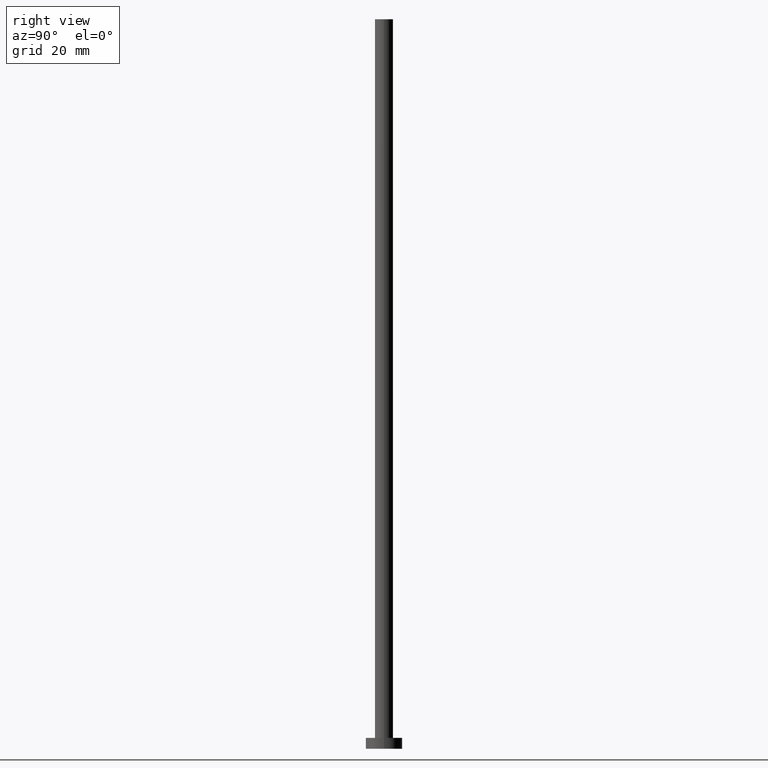
[diagram: clean part render]
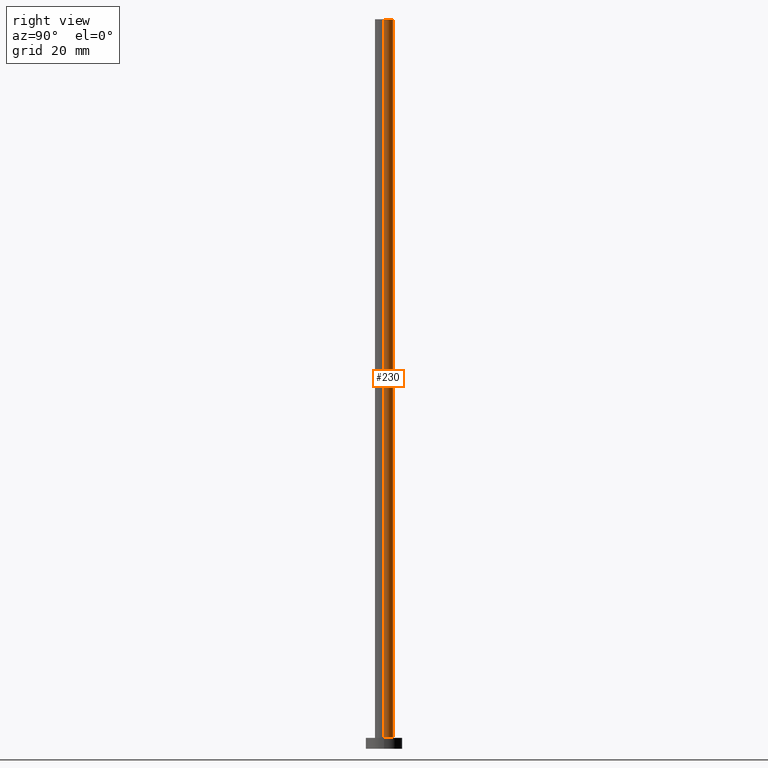
[diagram: same view with one face highlighted and labeled with its STEP entity id]
A machine part, right view. The second image highlights one B-rep face of the part: STEP entity #230.
In plain terms, the highlighted cylindrical surface (edge-blend (fillet) strip) has radius 2.5 mm, axis along (-0, -0, -1).
Its self-contained STEP definition (entity closure, byte-faithful):
#3 = VERTEX_POINT ( 'NONE', #71 ) ;
#10 = AXIS2_PLACEMENT_3D ( 'NONE', #13, #156, #245 ) ;
#13 = CARTESIAN_POINT ( 'NONE',  ( 0.000000000000000000, 0.000000000000000000, 200.0000000000000000 ) ) ;
#27 = CARTESIAN_POINT ( 'NONE',  ( -2.500000000000000000, 0.000000000000000000, 200.0000000000000000 ) ) ;
#30 = EDGE_CURVE ( 'NONE', #235, #131, #73, .T. ) ;
#32 = CARTESIAN_POINT ( 'NONE',  ( 2.500000000000000000, 3.061616997868383141E-16, 200.0000000000000000 ) ) ;
#37 = VECTOR ( 'NONE', #115, 1000.000000000000000 ) ;
#38 = ORIENTED_EDGE ( 'NONE', *, *, #248, .F. ) ;
#39 = EDGE_CURVE ( 'NONE', #3, #131, #223, .T. ) ;
#49 = CYLINDRICAL_SURFACE ( 'NONE', #10, 2.500000000000000000 ) ;
#51 = DIRECTION ( 'NONE',  ( 0.000000000000000000, 0.000000000000000000, 1.000000000000000000 ) ) ;
#62 = CARTESIAN_POINT ( 'NONE',  ( -2.500000000000000000, 0.000000000000000000, 3.000000000000000000 ) ) ;
#65 = CARTESIAN_POINT ( 'NONE',  ( 2.500000000000000000, 3.061616997868383141E-16, 200.0000000000000000 ) ) ;
#71 = CARTESIAN_POINT ( 'NONE',  ( 2.500000000000000000, 3.061616997868383141E-16, 3.000000000000000000 ) ) ;
#72 = DIRECTION ( 'NONE',  ( 0.000000000000000000, 0.000000000000000000, 1.000000000000000000 ) ) ;
#73 = LINE ( 'NONE', #229, #77 ) ;
#77 = VECTOR ( 'NONE', #188, 1000.000000000000000 ) ;
#92 = DIRECTION ( 'NONE',  ( 1.000000000000000000, 0.000000000000000000, 0.000000000000000000 ) ) ;
#96 = DIRECTION ( 'NONE',  ( 1.000000000000000000, 0.000000000000000000, 0.000000000000000000 ) ) ;
#97 = EDGE_CURVE ( 'NONE', #127, #3, #174, .T. ) ;
#105 = EDGE_LOOP ( 'NONE', ( #38, #198, #152, #140 ) ) ;
#112 = CARTESIAN_POINT ( 'NONE',  ( 0.000000000000000000, 0.000000000000000000, 200.0000000000000000 ) ) ;
#113 = AXIS2_PLACEMENT_3D ( 'NONE', #112, #72, #96 ) ;
#115 = DIRECTION ( 'NONE',  ( -0.000000000000000000, -0.000000000000000000, -1.000000000000000000 ) ) ;
#117 = AXIS2_PLACEMENT_3D ( 'NONE', #227, #51, #92 ) ;
#127 = VERTEX_POINT ( 'NONE', #65 ) ;
#131 = VERTEX_POINT ( 'NONE', #62 ) ;
#140 = ORIENTED_EDGE ( 'NONE', *, *, #30, .F. ) ;
#152 = ORIENTED_EDGE ( 'NONE', *, *, #39, .T. ) ;
#156 = DIRECTION ( 'NONE',  ( -0.000000000000000000, -0.000000000000000000, -1.000000000000000000 ) ) ;
#173 = FACE_OUTER_BOUND ( 'NONE', #105, .T. ) ;
#174 = LINE ( 'NONE', #32, #37 ) ;
#188 = DIRECTION ( 'NONE',  ( -0.000000000000000000, -0.000000000000000000, -1.000000000000000000 ) ) ;
#198 = ORIENTED_EDGE ( 'NONE', *, *, #97, .T. ) ;
#223 = CIRCLE ( 'NONE', #117, 2.500000000000000000 ) ;
#227 = CARTESIAN_POINT ( 'NONE',  ( 0.000000000000000000, 0.000000000000000000, 3.000000000000000000 ) ) ;
#229 = CARTESIAN_POINT ( 'NONE',  ( -2.500000000000000000, 0.000000000000000000, 200.0000000000000000 ) ) ;
#230 = ADVANCED_FACE ( 'NONE', ( #173 ), #49, .T. ) ;
#231 = CIRCLE ( 'NONE', #113, 2.500000000000000000 ) ;
#235 = VERTEX_POINT ( 'NONE', #27 ) ;
#245 = DIRECTION ( 'NONE',  ( -1.000000000000000000, 0.000000000000000000, 0.000000000000000000 ) ) ;
#248 = EDGE_CURVE ( 'NONE', #127, #235, #231, .T. ) ;